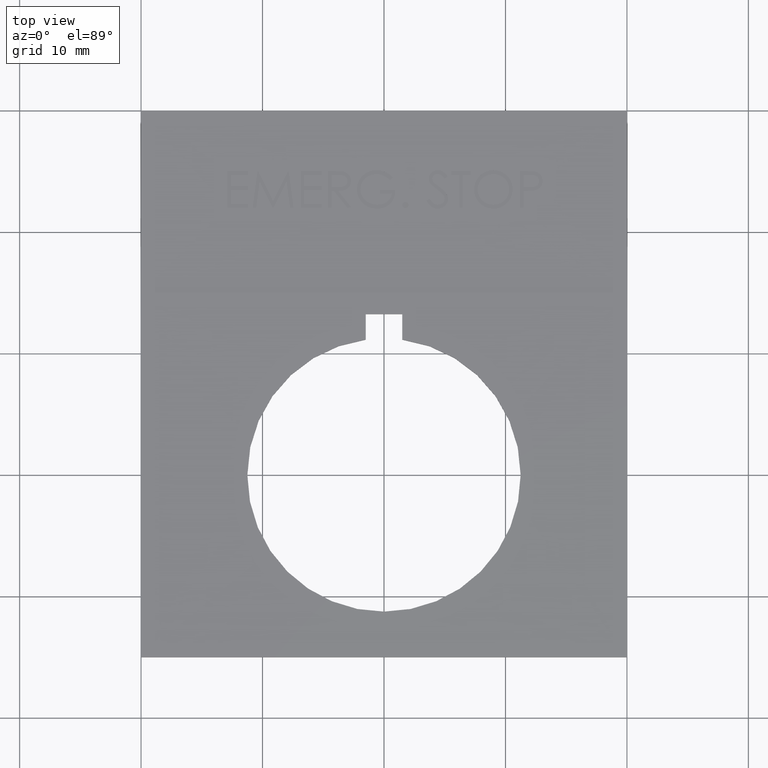
[diagram: clean part render]
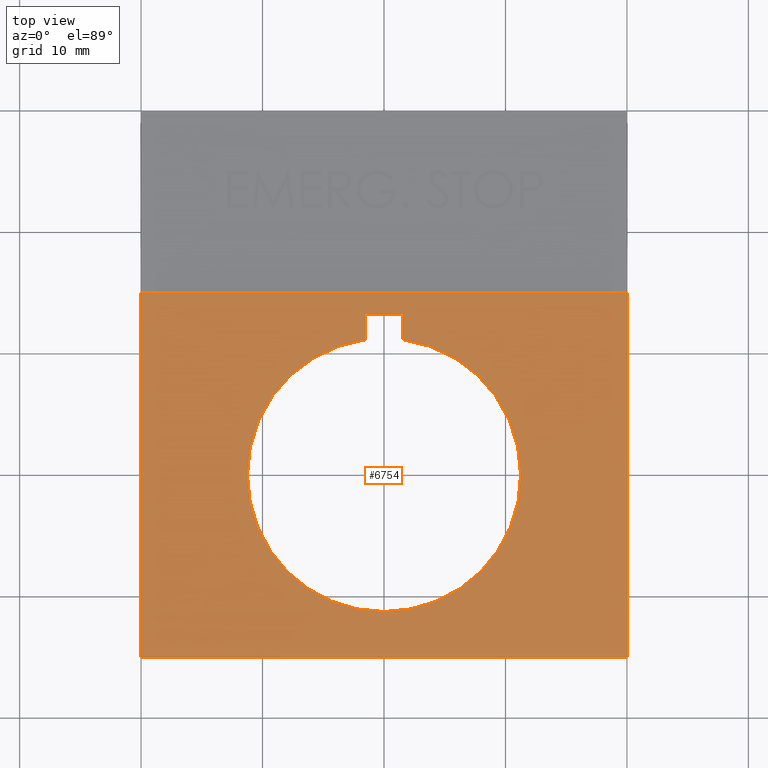
[diagram: same view with one face highlighted and labeled with its STEP entity id]
A machine part, top view. The second image highlights one B-rep face of the part: STEP entity #6754.
In plain terms, the highlighted planar face has unit normal (0, 0, -1).
Its self-contained STEP definition (entity closure, byte-faithful):
#16 = VERTEX_POINT ( 'NONE', #34 ) ;
#22 = CARTESIAN_POINT ( 'NONE',  ( 20.00000000000000400, 30.00000000000000000, 0.5000000000000000000 ) ) ;
#34 = CARTESIAN_POINT ( 'NONE',  ( 11.25000000000000200, 0.0000000000000000000, 0.5000000000000000000 ) ) ;
#114 = DIRECTION ( 'NONE',  ( 1.000000000000000000, 0.0000000000000000000, 0.0000000000000000000 ) ) ;
#123 = DIRECTION ( 'NONE',  ( 1.541976423090495400E-016, -1.000000000000000000, 0.0000000000000000000 ) ) ;
#733 = CARTESIAN_POINT ( 'NONE',  ( 0.0000000000000000000, 0.0000000000000000000, 0.5000000000000000000 ) ) ;
#760 = CIRCLE ( 'NONE', #1505, 11.25000000000000200 ) ;
#976 = ORIENTED_EDGE ( 'NONE', *, *, #8329, .F. ) ;
#1284 = CARTESIAN_POINT ( 'NONE',  ( -19.99999999999998900, -15.00000000000000000, 0.5000000000000000000 ) ) ;
#1416 = DIRECTION ( 'NONE',  ( -1.000000000000000000, -0.0000000000000000000, -0.0000000000000000000 ) ) ;
#1505 = AXIS2_PLACEMENT_3D ( 'NONE', #4878, #5641, #114 ) ;
#1530 = VECTOR ( 'NONE', #7546, 1000.000000000000000 ) ;
#1617 = CARTESIAN_POINT ( 'NONE',  ( 20.00000000000001100, -15.00000000000000000, 0.5000000000000000000 ) ) ;
#1620 = CARTESIAN_POINT ( 'NONE',  ( -19.99999999999999600, 30.00000000000000000, 0.5000000000000000000 ) ) ;
#1641 = LINE ( 'NONE', #1620, #3185 ) ;
#1701 = DIRECTION ( 'NONE',  ( -1.000000000000000000, 0.0000000000000000000, -0.0000000000000000000 ) ) ;
#1945 = DIRECTION ( 'NONE',  ( 1.000000000000000000, 0.0000000000000000000, 0.0000000000000000000 ) ) ;
#2012 = CARTESIAN_POINT ( 'NONE',  ( 1.499999999999999800, 9.250000000000000000, 0.5000000000000000000 ) ) ;
#2018 = VERTEX_POINT ( 'NONE', #2699 ) ;
#2074 = DIRECTION ( 'NONE',  ( 1.000000000000000000, 0.0000000000000000000, 0.0000000000000000000 ) ) ;
#2168 = DIRECTION ( 'NONE',  ( 0.0000000000000000000, 0.0000000000000000000, 1.000000000000000000 ) ) ;
#2294 = EDGE_CURVE ( 'NONE', #2431, #3667, #4507, .T. ) ;
#2297 = CARTESIAN_POINT ( 'NONE',  ( 1.499999999999999800, 13.25000000000000200, 0.5000000000000000000 ) ) ;
#2431 = VERTEX_POINT ( 'NONE', #8162 ) ;
#2461 = ORIENTED_EDGE ( 'NONE', *, *, #6173, .F. ) ;
#2584 = LINE ( 'NONE', #3794, #2922 ) ;
#2603 = ORIENTED_EDGE ( 'NONE', *, *, #7214, .F. ) ;
#2699 = CARTESIAN_POINT ( 'NONE',  ( -19.99999999999998900, -15.00000000000000000, 0.5000000000000000000 ) ) ;
#2908 = CARTESIAN_POINT ( 'NONE',  ( -1.500000000000000200, 13.25000000000000200, 0.5000000000000000000 ) ) ;
#2922 = VECTOR ( 'NONE', #3092, 1000.000000000000000 ) ;
#3057 = VECTOR ( 'NONE', #4911, 1000.000000000000000 ) ;
#3092 = DIRECTION ( 'NONE',  ( -0.0000000000000000000, -1.000000000000000000, -0.0000000000000000000 ) ) ;
#3125 = VERTEX_POINT ( 'NONE', #4876 ) ;
#3185 = VECTOR ( 'NONE', #123, 1000.000000000000000 ) ;
#3667 = VERTEX_POINT ( 'NONE', #7018 ) ;
#3682 = EDGE_CURVE ( 'NONE', #3777, #16, #7984, .T. ) ;
#3777 = VERTEX_POINT ( 'NONE', #5281 ) ;
#3794 = CARTESIAN_POINT ( 'NONE',  ( -1.500000000000000200, 9.250000000000000000, 0.5000000000000000000 ) ) ;
#3808 = PLANE ( 'NONE',  #4089 ) ;
#4089 = AXIS2_PLACEMENT_3D ( 'NONE', #5181, #5917, #1701 ) ;
#4186 = VECTOR ( 'NONE', #5875, 1000.000000000000000 ) ;
#4326 = CARTESIAN_POINT ( 'NONE',  ( 0.0000000000000000000, 0.0000000000000000000, 0.5000000000000000000 ) ) ;
#4507 = LINE ( 'NONE', #7262, #4186 ) ;
#4543 = FACE_BOUND ( 'NONE', #5994, .T. ) ;
#4650 = CARTESIAN_POINT ( 'NONE',  ( 1.499999999999999800, 11.14955156048887900, 0.5000000000000000000 ) ) ;
#4653 = ORIENTED_EDGE ( 'NONE', *, *, #8149, .T. ) ;
#4659 = ORIENTED_EDGE ( 'NONE', *, *, #7679, .F. ) ;
#4773 = AXIS2_PLACEMENT_3D ( 'NONE', #4326, #5888, #6583 ) ;
#4876 = CARTESIAN_POINT ( 'NONE',  ( -1.500000000000000200, 13.25000000000000200, 0.5000000000000000000 ) ) ;
#4878 = CARTESIAN_POINT ( 'NONE',  ( 0.0000000000000000000, 0.0000000000000000000, 0.5000000000000000000 ) ) ;
#4911 = DIRECTION ( 'NONE',  ( 1.541976423090495400E-016, -1.000000000000000000, 0.0000000000000000000 ) ) ;
#5181 = CARTESIAN_POINT ( 'NONE',  ( 0.0000000000000000000, 0.0000000000000000000, 0.5000000000000000000 ) ) ;
#5281 = CARTESIAN_POINT ( 'NONE',  ( -11.25000000000000200, 1.377727649040772600E-015, 0.5000000000000000000 ) ) ;
#5343 = ORIENTED_EDGE ( 'NONE', *, *, #2294, .F. ) ;
#5524 = VERTEX_POINT ( 'NONE', #6030 ) ;
#5641 = DIRECTION ( 'NONE',  ( 0.0000000000000000000, 0.0000000000000000000, 1.000000000000000000 ) ) ;
#5848 = EDGE_LOOP ( 'NONE', ( #8726, #5343, #4653, #7174 ) ) ;
#5875 = DIRECTION ( 'NONE',  ( 1.000000000000000000, 0.0000000000000000000, 0.0000000000000000000 ) ) ;
#5888 = DIRECTION ( 'NONE',  ( 0.0000000000000000000, 0.0000000000000000000, 1.000000000000000000 ) ) ;
#5916 = CIRCLE ( 'NONE', #6911, 11.25000000000000200 ) ;
#5917 = DIRECTION ( 'NONE',  ( 0.0000000000000000000, 0.0000000000000000000, -1.000000000000000000 ) ) ;
#5994 = EDGE_LOOP ( 'NONE', ( #2603, #976, #7767, #7964, #4659, #2461 ) ) ;
#6030 = CARTESIAN_POINT ( 'NONE',  ( -1.500000000000000200, 11.14955156048887900, 0.5000000000000000000 ) ) ;
#6173 = EDGE_CURVE ( 'NONE', #3125, #5524, #2584, .T. ) ;
#6258 = VECTOR ( 'NONE', #1945, 1000.000000000000000 ) ;
#6368 = LINE ( 'NONE', #2908, #8082 ) ;
#6583 = DIRECTION ( 'NONE',  ( 1.000000000000000000, 0.0000000000000000000, 0.0000000000000000000 ) ) ;
#6689 = LINE ( 'NONE', #2012, #1530 ) ;
#6754 = ADVANCED_FACE ( 'NONE', ( #4543, #7934 ), #3808, .F. ) ;
#6911 = AXIS2_PLACEMENT_3D ( 'NONE', #733, #2168, #2074 ) ;
#7018 = CARTESIAN_POINT ( 'NONE',  ( 20.00000000000000400, 15.00000000000000000, 0.5000000000000000000 ) ) ;
#7045 = VERTEX_POINT ( 'NONE', #2297 ) ;
#7174 = ORIENTED_EDGE ( 'NONE', *, *, #8366, .T. ) ;
#7214 = EDGE_CURVE ( 'NONE', #7045, #3125, #6368, .T. ) ;
#7262 = CARTESIAN_POINT ( 'NONE',  ( -19.99999999999999300, 15.00000000000000000, 0.5000000000000000000 ) ) ;
#7503 = VERTEX_POINT ( 'NONE', #1617 ) ;
#7546 = DIRECTION ( 'NONE',  ( 0.0000000000000000000, 1.000000000000000000, 0.0000000000000000000 ) ) ;
#7679 = EDGE_CURVE ( 'NONE', #5524, #3777, #5916, .T. ) ;
#7767 = ORIENTED_EDGE ( 'NONE', *, *, #8423, .F. ) ;
#7934 = FACE_OUTER_BOUND ( 'NONE', #5848, .T. ) ;
#7964 = ORIENTED_EDGE ( 'NONE', *, *, #3682, .F. ) ;
#7984 = CIRCLE ( 'NONE', #4773, 11.25000000000000200 ) ;
#8082 = VECTOR ( 'NONE', #1416, 1000.000000000000000 ) ;
#8084 = LINE ( 'NONE', #1284, #6258 ) ;
#8149 = EDGE_CURVE ( 'NONE', #2431, #2018, #1641, .T. ) ;
#8162 = CARTESIAN_POINT ( 'NONE',  ( -19.99999999999999300, 15.00000000000000400, 0.5000000000000000000 ) ) ;
#8304 = LINE ( 'NONE', #22, #3057 ) ;
#8329 = EDGE_CURVE ( 'NONE', #8713, #7045, #6689, .T. ) ;
#8366 = EDGE_CURVE ( 'NONE', #2018, #7503, #8084, .T. ) ;
#8423 = EDGE_CURVE ( 'NONE', #16, #8713, #760, .T. ) ;
#8454 = EDGE_CURVE ( 'NONE', #3667, #7503, #8304, .T. ) ;
#8713 = VERTEX_POINT ( 'NONE', #4650 ) ;
#8726 = ORIENTED_EDGE ( 'NONE', *, *, #8454, .F. ) ;